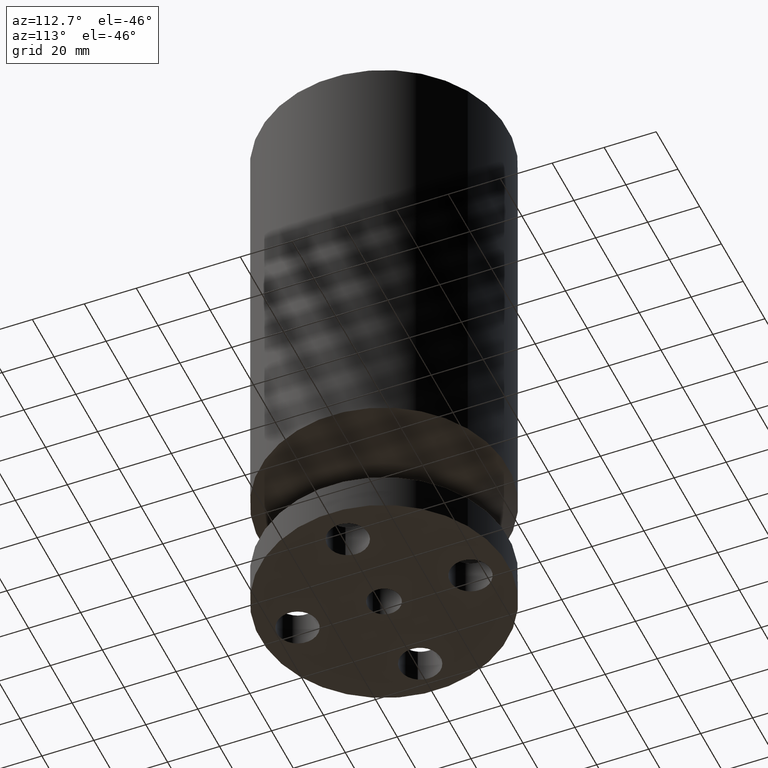
[diagram: clean part render]
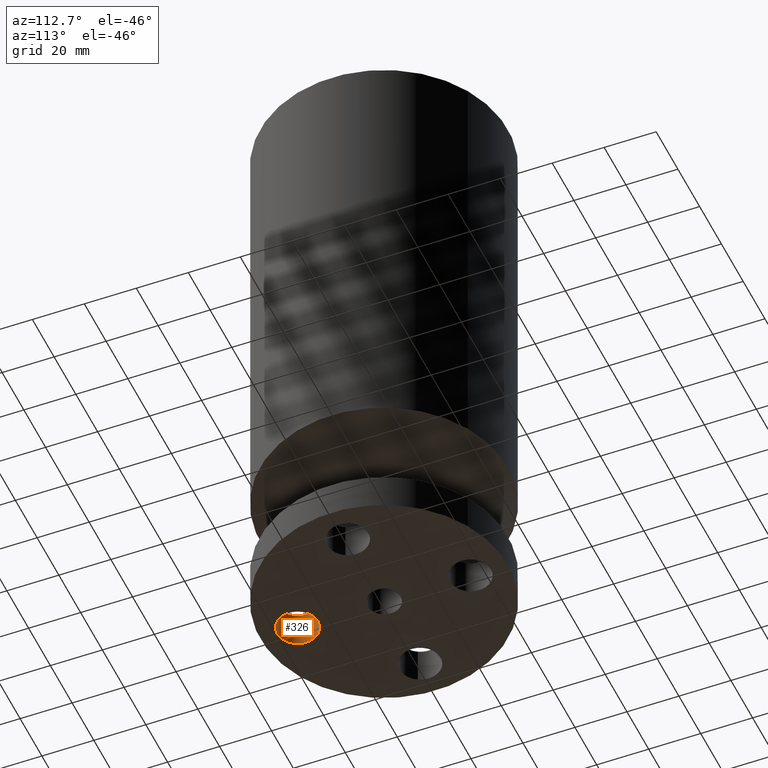
[diagram: same view with one face highlighted and labeled with its STEP entity id]
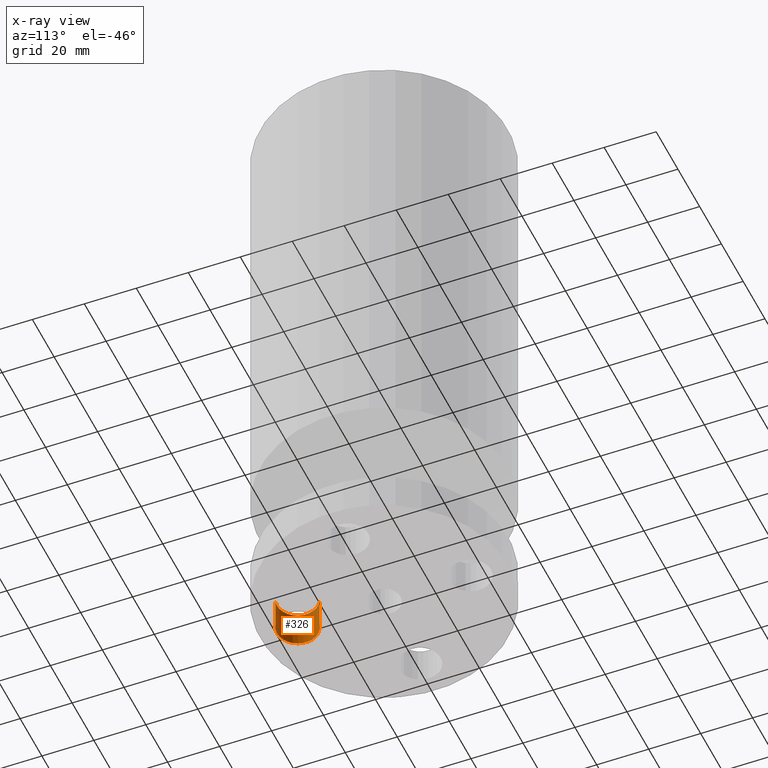
[diagram: x-ray of the same camera — body ghosted, the highlighted face saturated]
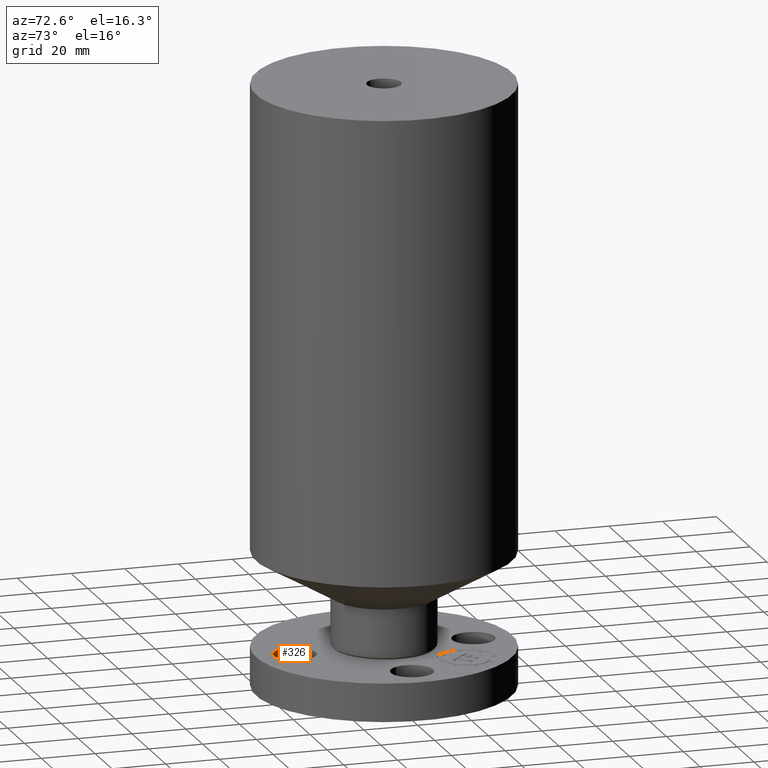
[diagram: same view with one face highlighted and labeled with its STEP entity id]
A machine part, auxiliary view. The second image highlights one B-rep face of the part: STEP entity #326.
The next image is the same camera in x-ray: the body ghosted, the highlighted face saturated — about 0% of this face is hidden behind the body in this view.
A second angle (auxiliary view) of the same face is appended — the face is thin or edge-on in the first view.
In plain terms, the highlighted cylindrical surface (edge-blend (fillet) strip) has radius 7.874 mm, axis along (-0, 0, 1).
Its self-contained STEP definition (entity closure, byte-faithful):
#136=AXIS2_PLACEMENT_3D('Circle Axis2P3D',#134,#135,$) ;
#299=AXIS2_PLACEMENT_3D('Cylinder Axis2P3D',#296,#297,#298) ;
#310=AXIS2_PLACEMENT_3D('Circle Axis2P3D',#308,#309,$) ;
#129=CARTESIAN_POINT('Vertex',(-0.148621916968,-1.03794940582,0.560000000002)) ;
#131=CARTESIAN_POINT('Vertex',(0.148621916968,-1.58205059419,0.560000000002)) ;
#134=CARTESIAN_POINT('Axis2P3D Location',(-2.44773580232E-016,-1.31000000001,0.560000000002)) ;
#296=CARTESIAN_POINT('Axis2P3D Location',(-1.99526869207E-016,-1.31000000001,0.00393700787402)) ;
#301=CARTESIAN_POINT('Line Origine',(0.148621916968,-1.58205059419,0.280000000001)) ;
#305=CARTESIAN_POINT('Vertex',(0.148621916968,-1.58205059419,2.2401153548E-016)) ;
#308=CARTESIAN_POINT('Axis2P3D Location',(-1.99526869207E-016,-1.31000000001,0.)) ;
#312=CARTESIAN_POINT('Vertex',(-0.148621916968,-1.03794940582,2.2401153548E-016)) ;
#315=CARTESIAN_POINT('Line Origine',(-0.148621916968,-1.03794940582,0.280000000001)) ;
#135=DIRECTION('Axis2P3D Direction',(0.,0.,-0.0393700787402)) ;
#297=DIRECTION('Axis2P3D Direction',(-0.,0.,0.0393700787402)) ;
#298=DIRECTION('Axis2P3D XDirection',(0.0188750212049,-0.0345504945626,0.)) ;
#302=DIRECTION('Vector Direction',(0.,0.,0.0393700787402)) ;
#309=DIRECTION('Axis2P3D Direction',(-0.,0.,0.0393700787402)) ;
#316=DIRECTION('Vector Direction',(0.,0.,0.0393700787402)) ;
#303=VECTOR('Line Direction',#302,0.0393700787402) ;
#317=VECTOR('Line Direction',#316,0.0393700787402) ;
#321=ORIENTED_EDGE('',*,*,#307,.T.) ;
#322=ORIENTED_EDGE('',*,*,#314,.T.) ;
#323=ORIENTED_EDGE('',*,*,#319,.F.) ;
#324=ORIENTED_EDGE('',*,*,#138,.F.) ;
#326=ADVANCED_FACE('PartBody',(#325),#300,.F.) ;
#137=CIRCLE('generated circle',#136,0.310000000001) ;
#311=CIRCLE('generated circle',#310,0.310000000001) ;
#300=CYLINDRICAL_SURFACE('generated cylinder',#299,0.310000000001) ;
#138=EDGE_CURVE('',#132,#130,#137,.T.) ;
#307=EDGE_CURVE('',#132,#306,#304,.F.) ;
#314=EDGE_CURVE('',#306,#313,#311,.F.) ;
#319=EDGE_CURVE('',#130,#313,#318,.F.) ;
#320=EDGE_LOOP('',(#321,#322,#323,#324)) ;
#325=FACE_OUTER_BOUND('',#320,.T.) ;
#304=LINE('Line',#301,#303) ;
#318=LINE('Line',#315,#317) ;
#130=VERTEX_POINT('',#129) ;
#132=VERTEX_POINT('',#131) ;
#306=VERTEX_POINT('',#305) ;
#313=VERTEX_POINT('',#312) ;